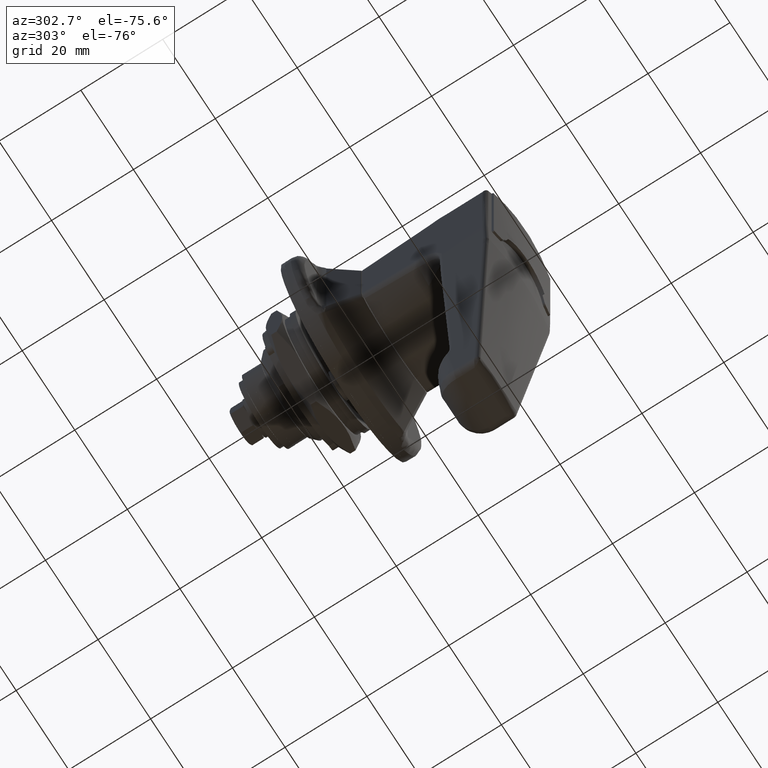
[diagram: clean part render]
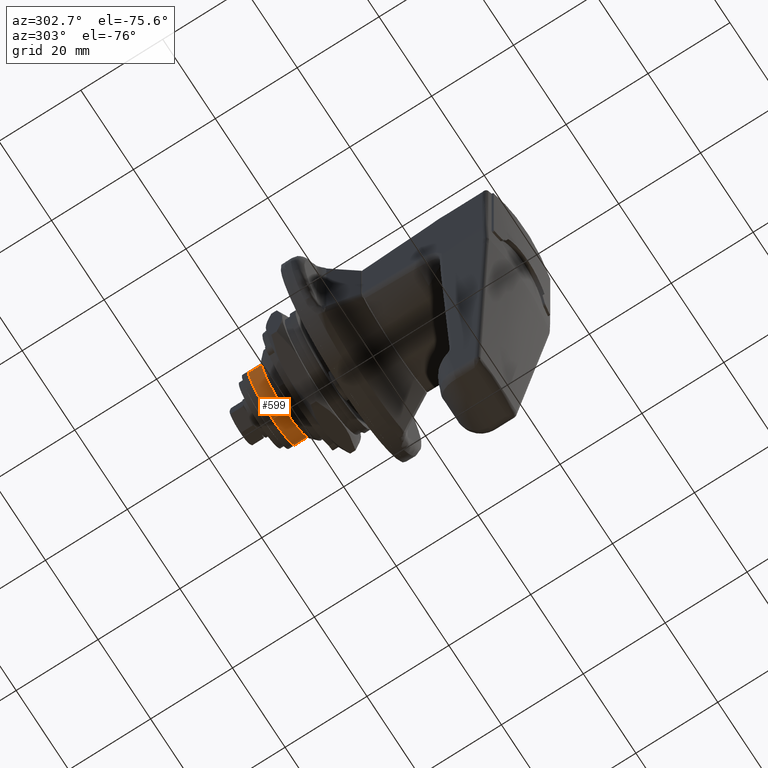
[diagram: same view with one face highlighted and labeled with its STEP entity id]
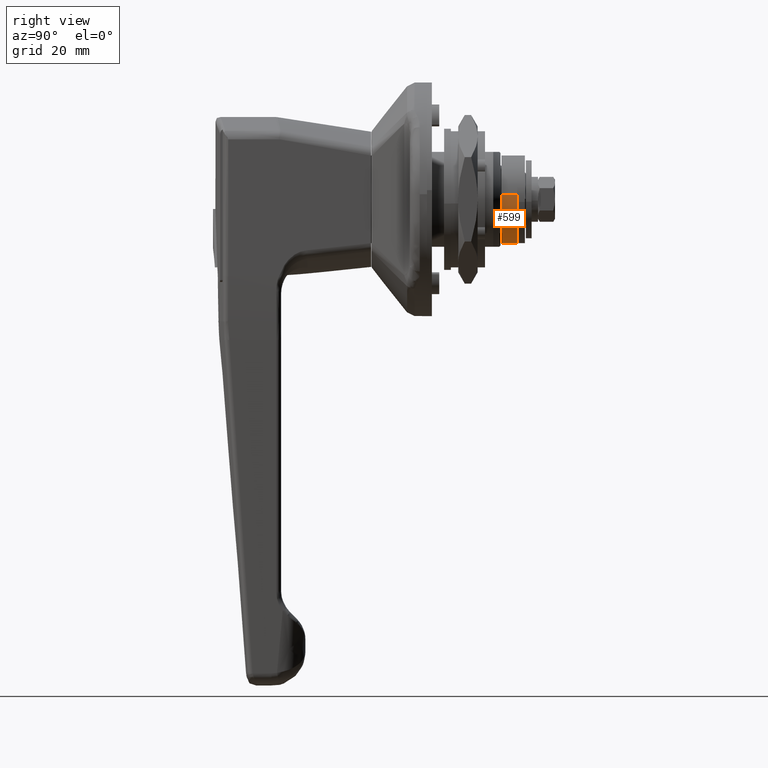
[diagram: same view with one face highlighted and labeled with its STEP entity id]
A machine part, auxiliary view. The second image highlights one B-rep face of the part: STEP entity #599.
A second angle (right view) of the same face is appended — the face is thin or edge-on in the first view.
In plain terms, the highlighted face is a freeform B-spline surface patch.
Its self-contained STEP definition (entity closure, byte-faithful):
#493=CARTESIAN_POINT('',(97.788713000000016,-8.921320672684070,1.194937932117103));
#494=CARTESIAN_POINT('',(97.788713000000016,-8.929225431262491,1.128436034639617));
#495=CARTESIAN_POINT('',(97.788713000000001,-8.967488539037619,0.806532557741814));
#496=CARTESIAN_POINT('',(97.788712999999987,-8.983213185796970,0.549436855813723));
#497=CARTESIAN_POINT('',(97.788712999999987,-9.532650041610694,-8.433776329983246));
#498=CARTESIAN_POINT('',(97.788712999999987,-0.549436855813723,-8.983213185796970));
#499=CARTESIAN_POINT('',(97.788712999999987,8.433776329983246,-9.532650041610694));
#500=CARTESIAN_POINT('',(97.788712999999959,8.987164704274093,-0.484830099801596));
#501=CARTESIAN_POINT('',(97.788712999999930,8.991092749528683,-0.420607127585436));
#502=CARTESIAN_POINT('',(101.150713000000020,-8.921320672684070,1.194937932117103));
#503=CARTESIAN_POINT('',(101.150713000000020,-8.929225431262491,1.128436034639617));
#504=CARTESIAN_POINT('',(101.150713000000020,-8.967488539037619,0.806532557741814));
#505=CARTESIAN_POINT('',(101.150713000000000,-8.983213185796970,0.549436855813723));
#506=CARTESIAN_POINT('',(101.150713000000020,-9.532650041610694,-8.433776329983246));
#507=CARTESIAN_POINT('',(101.150713000000000,-0.549436855813723,-8.983213185796970));
#508=CARTESIAN_POINT('',(101.150713000000020,8.433776329983246,-9.532650041610694));
#509=CARTESIAN_POINT('',(101.150712999999950,8.987164704274093,-0.484830099801596));
#510=CARTESIAN_POINT('',(101.150713000000010,8.991092749528683,-0.420607127585436));
#518=(BOUNDED_SURFACE()B_SPLINE_SURFACE(2,1,((#493,#502),(#494,#503),(#495,#504),(#496,#505),(#497,#506),(#498,#507),(#499,#508),(#500,#509),(#501,#510)),.UNSPECIFIED.,.F.,.F.,.U.)B_SPLINE_SURFACE_WITH_KNOTS((3,1,2,2,1,3),(2,2),(0.0,0.152099315947948,0.748566845765217,15.660255091196920,30.571943336628610,30.724062432800238),(0.0,3.362000000000047),.UNSPECIFIED.)GEOMETRIC_REPRESENTATION_ITEM()RATIONAL_B_SPLINE_SURFACE(((0.972008777400517,0.972008777400517),(0.974757289097822,0.974757289097822),(0.988284271247462,0.988284271247462),(1.0,1.0),(0.707106781186548,0.707106781186548),(1.0,1.0),(0.707106781186548,0.707106781186548),(1.002987901234748,1.002987901234748),(1.005975802469496,1.005975802469496)))REPRESENTATION_ITEM('')SURFACE());
#519=CARTESIAN_POINT('',(101.068713000000000,-8.937085737238153,1.062308112205403));
#520=VERTEX_POINT('',#519);
#521=CARTESIAN_POINT('',(101.068713000000000,0.0,-9.000000000000169));
#522=VERTEX_POINT('',#521);
#523=CARTESIAN_POINT('',(101.068713000000000,-8.937085737238153,1.062308112205403));
#524=CARTESIAN_POINT('',(101.068713000000000,-9.000000000000167,0.533017077164871));
#525=CARTESIAN_POINT('',(101.068713000000000,-9.000000000000169,0.0));
#526=CARTESIAN_POINT('',(101.068713000000000,-9.000000000000171,-9.000000000000171));
#527=CARTESIAN_POINT('',(101.068713000000000,0.0,-9.000000000000169));
#535=(BOUNDED_CURVE()B_SPLINE_CURVE(2,(#523,#524,#525,#526,#527),.UNSPECIFIED.,.F.,.U.)B_SPLINE_CURVE_WITH_KNOTS((3,2,3),(0.229562473504504,0.250000000000000,0.500000000000000),.UNSPECIFIED.)CURVE()GEOMETRIC_REPRESENTATION_ITEM()RATIONAL_B_SPLINE_CURVE((0.956026754166050,0.976055948320596,1.0,0.707106781186548,1.0))REPRESENTATION_ITEM(''));
#536=EDGE_CURVE('',#520,#522,#535,.T.);
#537=ORIENTED_EDGE('',*,*,#536,.F.);
#538=CARTESIAN_POINT('',(97.868713000000014,-8.937085737238153,1.062308112205403));
#539=VERTEX_POINT('',#538);
#540=CARTESIAN_POINT('',(97.868713000000014,-8.937085737238153,1.062308112205403));
#541=CARTESIAN_POINT('',(101.068713000000000,-8.937085737238153,1.062308112205403));
#542=QUASI_UNIFORM_CURVE('',1,(#540,#541),.UNSPECIFIED.,.F.,.U.);
#543=EDGE_CURVE('',#539,#520,#542,.T.);
#544=ORIENTED_EDGE('',*,*,#543,.F.);
#545=CARTESIAN_POINT('',(97.868713000000000,0.0,-9.000000000000169));
#546=VERTEX_POINT('',#545);
#547=CARTESIAN_POINT('',(97.868713000000014,-8.937085737238153,1.062308112205403));
#548=CARTESIAN_POINT('',(97.868713000000000,-9.000000000000169,0.533017077164872));
#549=CARTESIAN_POINT('',(97.868713000000000,-9.000000000000169,0.0));
#550=CARTESIAN_POINT('',(97.868713000000000,-9.000000000000171,-9.000000000000171));
#551=CARTESIAN_POINT('',(97.868713000000000,0.0,-9.000000000000169));
#559=(BOUNDED_CURVE()B_SPLINE_CURVE(2,(#547,#548,#549,#550,#551),.UNSPECIFIED.,.F.,.U.)B_SPLINE_CURVE_WITH_KNOTS((3,2,3),(0.229562473504504,0.250000000000000,0.500000000000000),.UNSPECIFIED.)CURVE()GEOMETRIC_REPRESENTATION_ITEM()RATIONAL_B_SPLINE_CURVE((0.956026754166050,0.976055948320596,1.0,0.707106781186548,1.0))REPRESENTATION_ITEM(''));
#560=EDGE_CURVE('',#539,#546,#559,.T.);
#561=ORIENTED_EDGE('',*,*,#560,.T.);
#562=CARTESIAN_POINT('',(97.868713000000014,8.983214203746822,-0.549420211974693));
#563=VERTEX_POINT('',#562);
#564=CARTESIAN_POINT('',(97.868713000000000,0.0,-9.000000000000169));
#565=CARTESIAN_POINT('',(97.868712999999985,8.466370317694269,-9.000000000000169));
#566=CARTESIAN_POINT('',(97.868713000000014,8.983214203746822,-0.549420211974693));
#574=(BOUNDED_CURVE()B_SPLINE_CURVE(2,(#564,#565,#566),.UNSPECIFIED.,.F.,.U.)B_SPLINE_CURVE_WITH_KNOTS((3,3),(0.500000000000000,0.739333281931774),.UNSPECIFIED.)CURVE()GEOMETRIC_REPRESENTATION_ITEM()RATIONAL_B_SPLINE_CURVE((1.0,0.719603618743261,0.976072726830268))REPRESENTATION_ITEM(''));
#575=EDGE_CURVE('',#546,#563,#574,.T.);
#576=ORIENTED_EDGE('',*,*,#575,.T.);
#577=CARTESIAN_POINT('',(101.068713000001490,8.983214216494606,-0.549420003537522));
#578=VERTEX_POINT('',#577);
#579=CARTESIAN_POINT('',(97.868713000000014,8.983214203746822,-0.549420211974693));
#580=CARTESIAN_POINT('',(101.068713000001490,8.983214216494606,-0.549420003537522));
#581=QUASI_UNIFORM_CURVE('',1,(#579,#580),.UNSPECIFIED.,.F.,.U.);
#582=EDGE_CURVE('',#563,#578,#581,.T.);
#583=ORIENTED_EDGE('',*,*,#582,.T.);
#584=CARTESIAN_POINT('',(101.068713000000000,0.0,-9.000000000000169));
#585=CARTESIAN_POINT('',(101.068712999999990,8.466370514506185,-9.000000000000167));
#586=CARTESIAN_POINT('',(101.068713000001470,8.983214216494606,-0.549420003537522));
#594=(BOUNDED_CURVE()B_SPLINE_CURVE(2,(#584,#585,#586),.UNSPECIFIED.,.F.,.U.)B_SPLINE_CURVE_WITH_KNOTS((3,3),(0.500000000000000,0.739333285935373),.UNSPECIFIED.)CURVE()GEOMETRIC_REPRESENTATION_ITEM()RATIONAL_B_SPLINE_CURVE((1.0,0.719603614052753,0.976072735410767))REPRESENTATION_ITEM(''));
#595=EDGE_CURVE('',#522,#578,#594,.T.);
#596=ORIENTED_EDGE('',*,*,#595,.F.);
#597=EDGE_LOOP('',(#537,#544,#561,#576,#583,#596));
#598=FACE_OUTER_BOUND('',#597,.T.);
#599=ADVANCED_FACE('',(#598),#518,.T.);